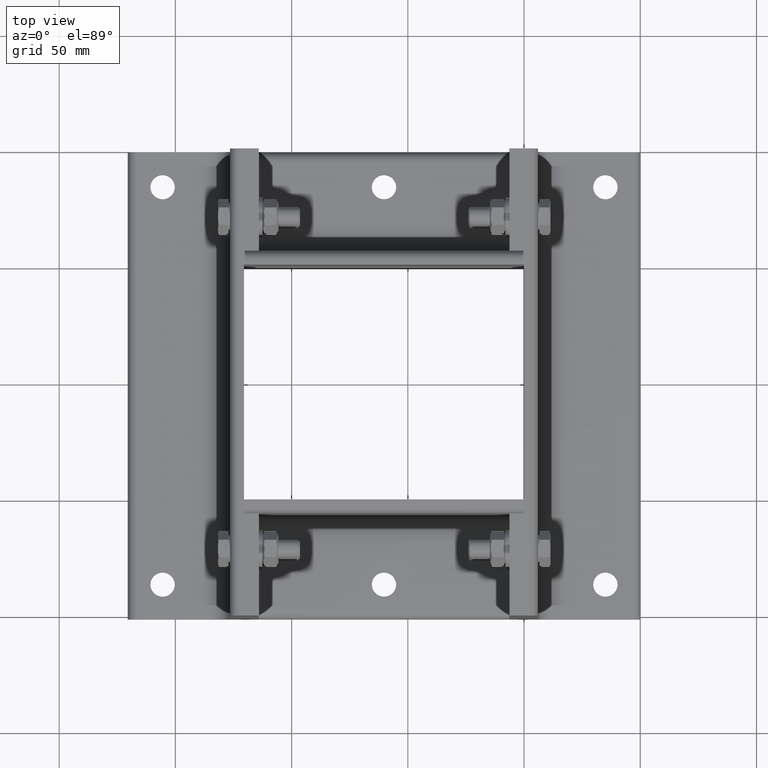
[diagram: clean part render]
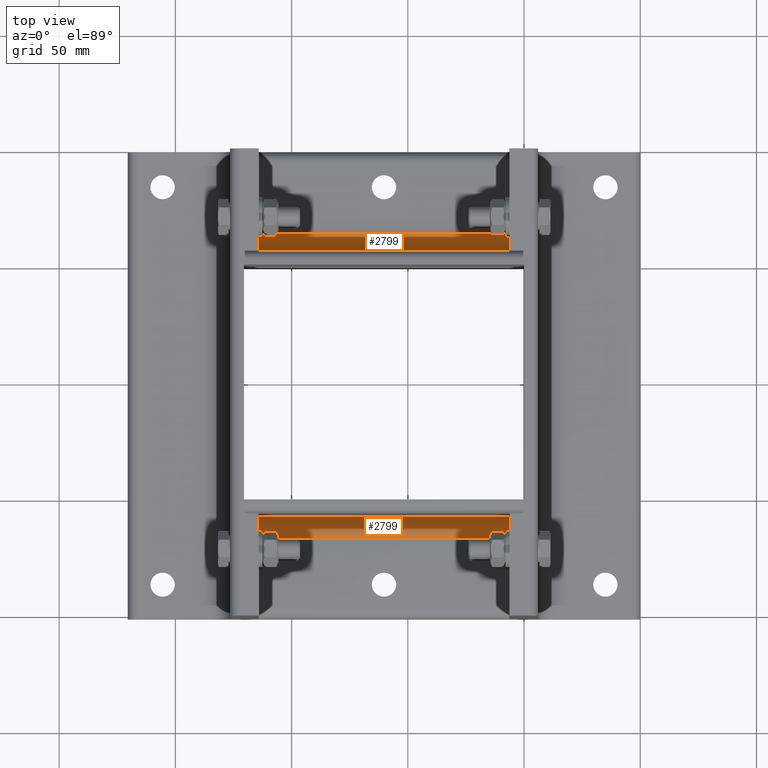
[diagram: same view with one multi-face feature highlighted, each face labeled with its STEP entity id]
A machine part, top view. The highlighted faces form ONE feature: a constant-radius fillet chain: 2 tangent blend faces with common blend radius 9 mm. The faces share edges in the B-rep.
Their STEP definitions:
[1] entity #2799 (Cylinder):
#2685=CARTESIAN_POINT('',(2.232257E-015,119.80000000000001,9.000000000000005));
#2686=VERTEX_POINT('',#2685);
#2693=CARTESIAN_POINT('',(9.0,119.80000000000001,-2.753479E-015));
#2694=VERTEX_POINT('',#2693);
#2695=CARTESIAN_POINT('',(9.000000000000002,119.80000000000001,9.000000000000004));
#2696=DIRECTION('',(0.0,1.0,0.0));
#2697=DIRECTION('',(-0.707106781186547,0.0,-0.707106781186548));
#2698=AXIS2_PLACEMENT_3D('',#2695,#2696,#2697);
#2699=CIRCLE('',#2698,9.0);
#2700=EDGE_CURVE('',#2694,#2686,#2699,.T.);
#2768=CARTESIAN_POINT('',(9.000000000000002,0.0,9.000000000000004));
#2769=DIRECTION('',(0.0,1.0,0.0));
#2770=DIRECTION('',(-0.707106781186547,0.0,-0.707106781186548));
#2771=AXIS2_PLACEMENT_3D('',#2768,#2769,#2770);
#2772=CYLINDRICAL_SURFACE('',#2771,9.0);
#2773=CARTESIAN_POINT('',(2.232257E-015,0.0,9.000000000000005));
#2774=VERTEX_POINT('',#2773);
#2775=CARTESIAN_POINT('',(9.0,0.0,-2.753479E-015));
#2776=VERTEX_POINT('',#2775);
#2777=CARTESIAN_POINT('',(9.000000000000002,0.0,9.000000000000004));
#2778=DIRECTION('',(0.0,-1.0,0.0));
#2779=DIRECTION('',(-0.707106781186547,0.0,-0.707106781186548));
#2780=AXIS2_PLACEMENT_3D('',#2777,#2778,#2779);
#2781=CIRCLE('',#2780,9.0);
#2782=EDGE_CURVE('',#2774,#2776,#2781,.T.);
#2783=ORIENTED_EDGE('',*,*,#2782,.T.);
#2784=CARTESIAN_POINT('',(9.0,0.0,-2.220446E-015));
#2785=DIRECTION('',(0.0,1.0,0.0));
#2786=VECTOR('',#2785,119.80000000000001);
#2787=LINE('',#2784,#2786);
#2788=EDGE_CURVE('',#2776,#2694,#2787,.T.);
#2789=ORIENTED_EDGE('',*,*,#2788,.T.);
#2790=ORIENTED_EDGE('',*,*,#2700,.T.);
#2791=CARTESIAN_POINT('',(2.220446E-015,119.80000000000001,9.000000000000005));
#2792=DIRECTION('',(0.0,-1.0,0.0));
#2793=VECTOR('',#2792,119.80000000000001);
#2794=LINE('',#2791,#2793);
#2795=EDGE_CURVE('',#2686,#2774,#2794,.T.);
#2796=ORIENTED_EDGE('',*,*,#2795,.T.);
#2797=EDGE_LOOP('',(#2783,#2789,#2790,#2796));
#2798=FACE_OUTER_BOUND('',#2797,.T.);
#2799=ADVANCED_FACE('',(#2798),#2772,.F.);
[2] entity #2799 (Cylinder):
#2685=CARTESIAN_POINT('',(2.232257E-015,119.80000000000001,9.000000000000005));
#2686=VERTEX_POINT('',#2685);
#2693=CARTESIAN_POINT('',(9.0,119.80000000000001,-2.753479E-015));
#2694=VERTEX_POINT('',#2693);
#2695=CARTESIAN_POINT('',(9.000000000000002,119.80000000000001,9.000000000000004));
#2696=DIRECTION('',(0.0,1.0,0.0));
#2697=DIRECTION('',(-0.707106781186547,0.0,-0.707106781186548));
#2698=AXIS2_PLACEMENT_3D('',#2695,#2696,#2697);
#2699=CIRCLE('',#2698,9.0);
#2700=EDGE_CURVE('',#2694,#2686,#2699,.T.);
#2768=CARTESIAN_POINT('',(9.000000000000002,0.0,9.000000000000004));
#2769=DIRECTION('',(0.0,1.0,0.0));
#2770=DIRECTION('',(-0.707106781186547,0.0,-0.707106781186548));
#2771=AXIS2_PLACEMENT_3D('',#2768,#2769,#2770);
#2772=CYLINDRICAL_SURFACE('',#2771,9.0);
#2773=CARTESIAN_POINT('',(2.232257E-015,0.0,9.000000000000005));
#2774=VERTEX_POINT('',#2773);
#2775=CARTESIAN_POINT('',(9.0,0.0,-2.753479E-015));
#2776=VERTEX_POINT('',#2775);
#2777=CARTESIAN_POINT('',(9.000000000000002,0.0,9.000000000000004));
#2778=DIRECTION('',(0.0,-1.0,0.0));
#2779=DIRECTION('',(-0.707106781186547,0.0,-0.707106781186548));
#2780=AXIS2_PLACEMENT_3D('',#2777,#2778,#2779);
#2781=CIRCLE('',#2780,9.0);
#2782=EDGE_CURVE('',#2774,#2776,#2781,.T.);
#2783=ORIENTED_EDGE('',*,*,#2782,.T.);
#2784=CARTESIAN_POINT('',(9.0,0.0,-2.220446E-015));
#2785=DIRECTION('',(0.0,1.0,0.0));
#2786=VECTOR('',#2785,119.80000000000001);
#2787=LINE('',#2784,#2786);
#2788=EDGE_CURVE('',#2776,#2694,#2787,.T.);
#2789=ORIENTED_EDGE('',*,*,#2788,.T.);
#2790=ORIENTED_EDGE('',*,*,#2700,.T.);
#2791=CARTESIAN_POINT('',(2.220446E-015,119.80000000000001,9.000000000000005));
#2792=DIRECTION('',(0.0,-1.0,0.0));
#2793=VECTOR('',#2792,119.80000000000001);
#2794=LINE('',#2791,#2793);
#2795=EDGE_CURVE('',#2686,#2774,#2794,.T.);
#2796=ORIENTED_EDGE('',*,*,#2795,.T.);
#2797=EDGE_LOOP('',(#2783,#2789,#2790,#2796));
#2798=FACE_OUTER_BOUND('',#2797,.T.);
#2799=ADVANCED_FACE('',(#2798),#2772,.F.);